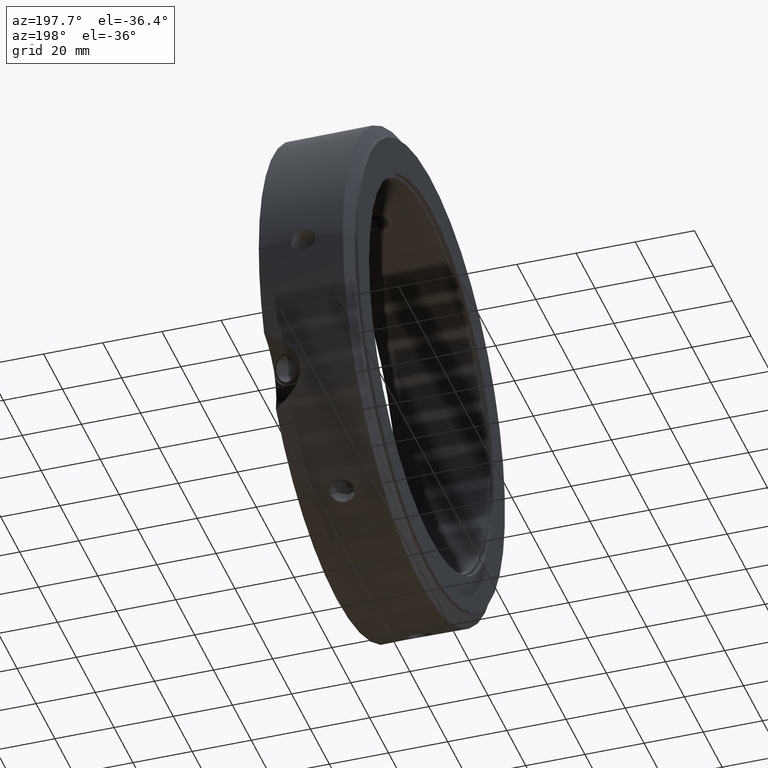
[diagram: clean part render]
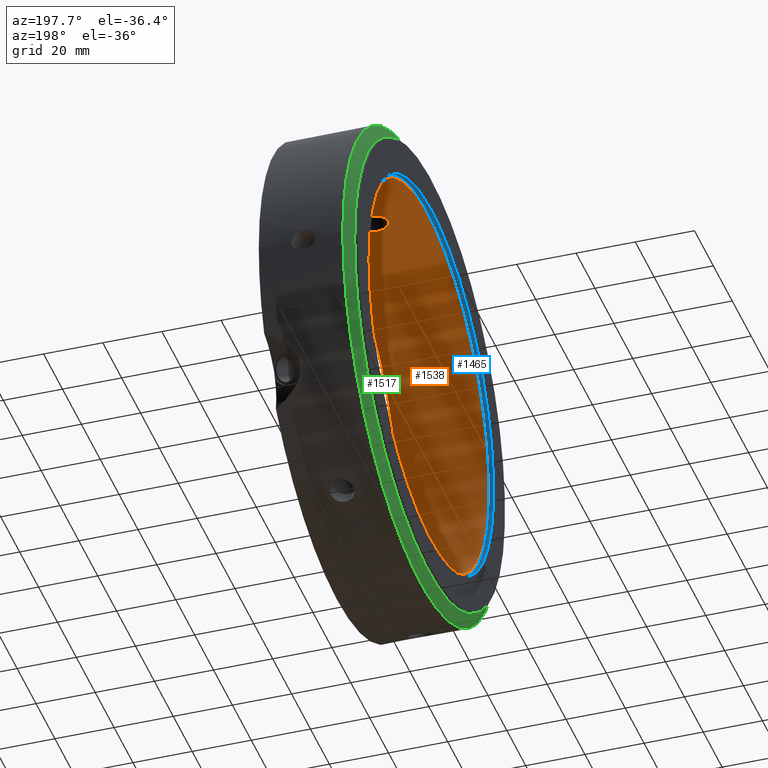
[diagram: same view with three faces highlighted in distinct colors, each labeled with its STEP entity id]
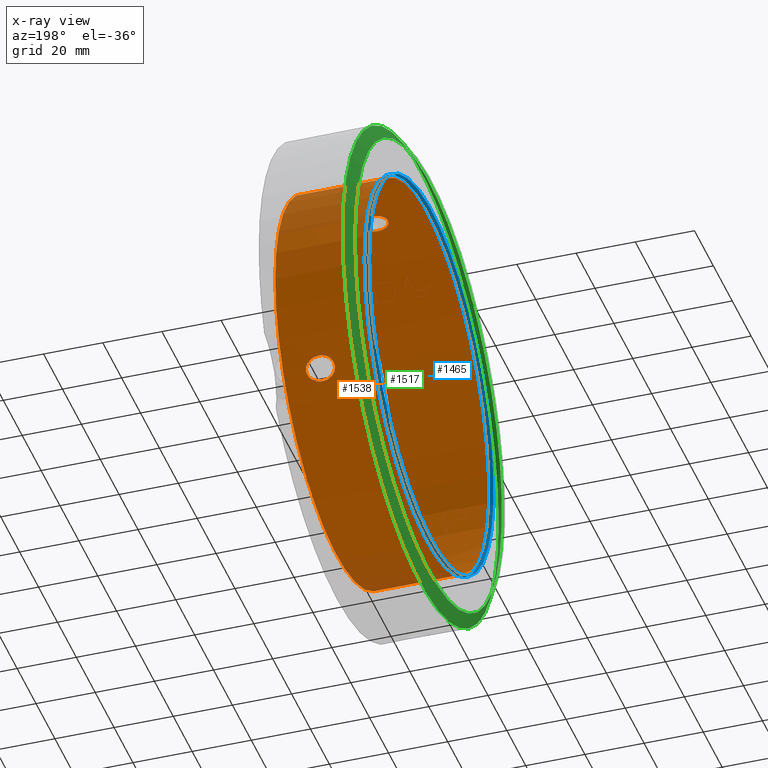
[diagram: x-ray of the same camera — body ghosted, the three highlighted faces saturated]
A machine part, auxiliary view with three faces highlighted in distinct colors.
The next image is the same camera in x-ray (body ghosted, the three faces saturated) — at least one of them is partly hidden behind the body in this view.
Their STEP definitions:

[orange] entity #1538 — the highlighted cylindrical surface (bore or boss wall) has radius 65 mm, axis along (1, 0, 0).
#834=CARTESIAN_POINT('',(19.449791525899506,58.268687288849222,-28.805556436810956));
#835=VERTEX_POINT('',#834);
#836=CARTESIAN_POINT('',(19.449791525899506,58.268687288849222,-28.805556436810956));
#837=CARTESIAN_POINT('',(20.069987058709103,58.268687288849222,-28.805556436810956));
#838=CARTESIAN_POINT('',(20.736374514679333,58.220625987306931,-28.903463131163566));
#839=CARTESIAN_POINT('',(21.979126455155811,58.017443102143289,-29.309175482424386));
#840=CARTESIAN_POINT('',(22.555508099497487,57.86205872336734,-29.616796903578148));
#841=CARTESIAN_POINT('',(23.404937812378947,57.508713071575698,-30.296383630198804));
#842=CARTESIAN_POINT('',(23.759122230442244,57.299869948817737,-30.691582888125023));
#843=CARTESIAN_POINT('',(24.238995100665754,56.822537691922747,-31.566557738468216));
#844=CARTESIAN_POINT('',(24.363653352058002,56.553441166495404,-32.046566556772632));
#845=CARTESIAN_POINT('',(24.363653352058002,56.029861325481576,-32.953433443227418));
#846=CARTESIAN_POINT('',(24.238995100665758,55.748709757503072,-33.42648227946983));
#847=CARTESIAN_POINT('',(23.759122230442252,55.22962543788087,-34.277351565158256));
#848=CARTESIAN_POINT('',(23.404937812378947,54.991794402338982,-34.655814643835427));
#849=CARTESIAN_POINT('',(22.555508099497491,54.579927858906601,-35.301614317914094));
#850=CARTESIAN_POINT('',(21.979126455155814,54.391212082827167,-35.589991847862208));
#851=CARTESIAN_POINT('',(20.736374514679341,54.141446322587996,-35.968809563658553));
#852=CARTESIAN_POINT('',(20.069987058709117,54.080687288849219,-36.059385218909419));
#853=CARTESIAN_POINT('',(18.863857942222779,54.080687288849219,-36.059385218909419));
#854=CARTESIAN_POINT('',(18.232563318278345,54.135148848709832,-35.97818335743932));
#855=CARTESIAN_POINT('',(17.05436508929462,54.366278161371341,-35.627963981850122));
#856=CARTESIAN_POINT('',(16.507621323634268,54.542953425429381,-35.358413918389047));
#857=CARTESIAN_POINT('',(15.665169456207622,54.945746990040945,-34.728855967749162));
#858=CARTESIAN_POINT('',(15.30279860191299,55.192112236806494,-34.337979828775559));
#859=CARTESIAN_POINT('',(14.816015520101955,55.730159706961402,-33.457665952003026));
#860=CARTESIAN_POINT('',(14.691881642593387,56.021521461332867,-32.967878511661219));
#861=CARTESIAN_POINT('',(14.691881642593387,56.552417962650203,-32.048338797819042));
#862=CARTESIAN_POINT('',(14.807657033176637,56.822302951689878,-31.567045290725417));
#863=CARTESIAN_POINT('',(15.264621480098503,57.303514916827439,-30.684843803839513));
#864=CARTESIAN_POINT('',(15.605512266562972,57.515261652401399,-30.284010367374549));
#865=CARTESIAN_POINT('',(16.42883428023265,57.869486479730917,-29.602241052614104));
#866=CARTESIAN_POINT('',(16.98645143067052,58.023470625607118,-29.297208731814187));
#867=CARTESIAN_POINT('',(18.194714033460595,58.222834790453305,-28.89898080939204));
#868=CARTESIAN_POINT('',(18.84520606450592,58.268687288849222,-28.805556436810956));
#869=CARTESIAN_POINT('',(19.44979152589951,58.268687288849222,-28.805556436810956));
#870=B_SPLINE_CURVE_WITH_KNOTS('',3,(#836,#837,#838,#839,#840,#841,#842,#843,#844,#845,#846,#847,#848,#849,#850,#851,#852,#853,#854,#855,#856,#857,#858,#859,#860,#861,#862,#863,#864,#865,#866,#867,#868,#869),.UNSPECIFIED.,.T.,.U.,(4,2,2,2,2,2,2,2,2,2,2,2,2,2,2,2,4),(0.0,0.18605865984288,0.37211731968576,0.529191271989907,0.686265224294055,0.843339176598202,1.00041312890235,1.186471788745229,1.372530448588109,1.548310523691131,1.724090598794154,1.886168469587528,2.048246340380903,2.204706370377928,2.361166400374954,2.54254203879303,2.723917677211107),.UNSPECIFIED.);
#871=EDGE_CURVE('',#835,#835,#870,.T.);
#1020=CARTESIAN_POINT('',(19.44979152589951,-54.080687288849241,-36.05938521890937));
#1021=VERTEX_POINT('',#1020);
#1022=CARTESIAN_POINT('',(19.44979152589951,-54.080687288849241,-36.05938521890937));
#1023=CARTESIAN_POINT('',(20.069987058709113,-54.080687288849241,-36.05938521890937));
#1024=CARTESIAN_POINT('',(20.73637451467933,-54.141446322588038,-35.968809563658517));
#1025=CARTESIAN_POINT('',(21.979126455155811,-54.391212082827209,-35.589991847862173));
#1026=CARTESIAN_POINT('',(22.555508099497494,-54.579927858906636,-35.301614317914051));
#1027=CARTESIAN_POINT('',(23.404937812378957,-54.991794402339025,-34.655814643835384));
#1028=CARTESIAN_POINT('',(23.759122230442252,-55.229625437880898,-34.277351565158206));
#1029=CARTESIAN_POINT('',(24.238995100665758,-55.748709757503093,-33.426482279469781));
#1030=CARTESIAN_POINT('',(24.363653352058012,-56.029861325481619,-32.953433443227375));
#1031=CARTESIAN_POINT('',(24.363653352058012,-56.553441166495446,-32.046566556772589));
#1032=CARTESIAN_POINT('',(24.238995100665761,-56.822537691922776,-31.566557738468163));
#1033=CARTESIAN_POINT('',(23.759122230442252,-57.299869948817758,-30.691582888124969));
#1034=CARTESIAN_POINT('',(23.404937812378957,-57.508713071575741,-30.296383630198747));
#1035=CARTESIAN_POINT('',(22.555508099497494,-57.862058723367376,-29.616796903578091));
#1036=CARTESIAN_POINT('',(21.979126455155811,-58.017443102143325,-29.309175482424344));
#1037=CARTESIAN_POINT('',(20.736374514679333,-58.220625987306967,-28.903463131163527));
#1038=CARTESIAN_POINT('',(20.069987058709117,-58.26868728884925,-28.805556436810914));
#1039=CARTESIAN_POINT('',(18.845206064505927,-58.26868728884925,-28.805556436810914));
#1040=CARTESIAN_POINT('',(18.19471403346061,-58.222834790453334,-28.898980809391986));
#1041=CARTESIAN_POINT('',(16.986451430670531,-58.023470625607146,-29.297208731814138));
#1042=CARTESIAN_POINT('',(16.42883428023265,-57.869486479730945,-29.602241052614051));
#1043=CARTESIAN_POINT('',(15.605512266562974,-57.515261652401435,-30.284010367374506));
#1044=CARTESIAN_POINT('',(15.264621480098501,-57.30351491682746,-30.684843803839463));
#1045=CARTESIAN_POINT('',(14.807657033176636,-56.822302951689892,-31.567045290725364));
#1046=CARTESIAN_POINT('',(14.691881642593394,-56.552417962650239,-32.048338797818992));
#1047=CARTESIAN_POINT('',(14.691881642593394,-56.030884529326812,-32.951661202180986));
#1048=CARTESIAN_POINT('',(14.807657033176639,-55.749014620027069,-33.426035212336231));
#1049=CARTESIAN_POINT('',(15.264621480098505,-55.225611703696259,-34.283877742193354));
#1050=CARTESIAN_POINT('',(15.605512266562979,-54.98435313281837,-34.667672512601307));
#1051=CARTESIAN_POINT('',(16.428834280232657,-54.571036000379863,-35.315324869100053));
#1052=CARTESIAN_POINT('',(16.986451430670531,-54.383862334529908,-35.601195211608847));
#1053=CARTESIAN_POINT('',(18.194714033460603,-54.138668919639123,-35.972963604180983));
#1054=CARTESIAN_POINT('',(18.84520606450592,-54.080687288849248,-36.05938521890937));
#1055=CARTESIAN_POINT('',(19.44979152589951,-54.080687288849248,-36.05938521890937));
#1056=B_SPLINE_CURVE_WITH_KNOTS('',3,(#1022,#1023,#1024,#1025,#1026,#1027,#1028,#1029,#1030,#1031,#1032,#1033,#1034,#1035,#1036,#1037,#1038,#1039,#1040,#1041,#1042,#1043,#1044,#1045,#1046,#1047,#1048,#1049,#1050,#1051,#1052,#1053,#1054,#1055),.UNSPECIFIED.,.T.,.U.,(4,2,2,2,2,2,2,2,2,2,2,2,2,2,2,2,4),(0.0,0.18605865984288,0.37211731968576,0.529191271989908,0.686265224294056,0.843339176598204,1.000413128902352,1.186471788745231,1.372530448588111,1.553906087006188,1.735281725424266,1.89174175542129,2.048201785418315,2.20466181541534,2.361121845412365,2.542497483830442,2.723873122248519),.UNSPECIFIED.);
#1057=EDGE_CURVE('',#1021,#1021,#1056,.T.);
#1212=CARTESIAN_POINT('',(19.449791525899517,-4.188,64.864941655720301));
#1213=VERTEX_POINT('',#1212);
#1214=CARTESIAN_POINT('',(19.449791525899517,-4.188,64.864941655720301));
#1215=CARTESIAN_POINT('',(20.069987058709113,-4.188,64.864941655720301));
#1216=CARTESIAN_POINT('',(20.736374514679344,-4.079179664718942,64.872272694822058));
#1217=CARTESIAN_POINT('',(21.979126455155821,-3.626231019316133,64.899167330286531));
#1218=CARTESIAN_POINT('',(22.555508099497494,-3.282130864460732,64.918411221492178));
#1219=CARTESIAN_POINT('',(23.404937812378957,-2.516918669236713,64.952198274034174));
#1220=CARTESIAN_POINT('',(23.759122230442252,-2.070244510936864,64.968934453283197));
#1221=CARTESIAN_POINT('',(24.238995100665761,-1.073827934419675,64.993040017937972));
#1222=CARTESIAN_POINT('',(24.363653352058012,-0.523579841013825,65.0));
#1223=CARTESIAN_POINT('',(24.363653352058012,0.523579841013826,65.0));
#1224=CARTESIAN_POINT('',(24.238995100665761,1.07382793441968,64.993040017937986));
#1225=CARTESIAN_POINT('',(23.759122230442252,2.070244510936868,64.968934453283211));
#1226=CARTESIAN_POINT('',(23.404937812378957,2.516918669236713,64.952198274034174));
#1227=CARTESIAN_POINT('',(22.555508099497494,3.282130864460732,64.918411221492178));
#1228=CARTESIAN_POINT('',(21.979126455155821,3.626231019316133,64.899167330286531));
#1229=CARTESIAN_POINT('',(20.736374514679344,4.079179664718942,64.872272694822058));
#1230=CARTESIAN_POINT('',(20.069987058709117,4.188,64.864941655720315));
#1231=CARTESIAN_POINT('',(18.863857942222779,4.188,64.864941655720315));
#1232=CARTESIAN_POINT('',(18.232563318278348,4.090446345202,64.871505819354283));
#1233=CARTESIAN_POINT('',(17.054365089294635,3.671582812713479,64.896559987883776));
#1234=CARTESIAN_POINT('',(16.507621323634279,3.349807978135457,64.914790223047845));
#1235=CARTESIAN_POINT('',(15.665169456207636,2.60319801742106,64.948840707162404));
#1236=CARTESIAN_POINT('',(15.302798601912997,2.14150672795398,64.966761199984177));
#1237=CARTESIAN_POINT('',(14.816015520101962,1.110108812287548,64.992567039194014));
#1238=CARTESIAN_POINT('',(14.691881642593394,0.540259569311249,65.0));
#1239=CARTESIAN_POINT('',(14.691881642593394,-0.521533433323416,65.0));
#1240=CARTESIAN_POINT('',(14.807657033176643,-1.073288331662836,64.993080503061634));
#1241=CARTESIAN_POINT('',(15.264621480098503,-2.077903213131215,64.968721546032839));
#1242=CARTESIAN_POINT('',(15.605512266562975,-2.530908519583063,64.951682879975849));
#1243=CARTESIAN_POINT('',(16.428834280232657,-3.298450479351081,64.917565921714129));
#1244=CARTESIAN_POINT('',(16.986451430670531,-3.639608291077229,64.898403943423006));
#1245=CARTESIAN_POINT('',(18.194714033460606,-4.084165870814204,64.871944413573004));
#1246=CARTESIAN_POINT('',(18.845206064505927,-4.188,64.864941655720301));
#1247=CARTESIAN_POINT('',(19.449791525899517,-4.188,64.864941655720301));
#1248=B_SPLINE_CURVE_WITH_KNOTS('',3,(#1214,#1215,#1216,#1217,#1218,#1219,#1220,#1221,#1222,#1223,#1224,#1225,#1226,#1227,#1228,#1229,#1230,#1231,#1232,#1233,#1234,#1235,#1236,#1237,#1238,#1239,#1240,#1241,#1242,#1243,#1244,#1245,#1246,#1247),.UNSPECIFIED.,.T.,.U.,(4,2,2,2,2,2,2,2,2,2,2,2,2,2,2,2,4),(0.0,0.18605865984288,0.372117319685759,0.529191271989907,0.686265224294055,0.843339176598202,1.00041312890235,1.186471788745229,1.372530448588109,1.548310523691131,1.724090598794153,1.886168469587528,2.048246340380903,2.204706370377928,2.361166400374953,2.54254203879303,2.723917677211108),.UNSPECIFIED.);
#1249=EDGE_CURVE('',#1213,#1213,#1248,.T.);
#1394=CARTESIAN_POINT('',(31.999999999999986,65.0,0.0));
#1395=VERTEX_POINT('',#1394);
#1396=CARTESIAN_POINT('',(31.999999999999986,0.0,0.0));
#1397=DIRECTION('',(1.0,0.0,0.0));
#1398=DIRECTION('',(0.0,1.0,0.0));
#1399=AXIS2_PLACEMENT_3D('',#1396,#1397,#1398);
#1400=CIRCLE('',#1399,65.0);
#1401=EDGE_CURVE('',#1395,#1395,#1400,.T.);
#1434=CARTESIAN_POINT('',(1.499999999999981,65.0,0.0));
#1435=VERTEX_POINT('',#1434);
#1436=CARTESIAN_POINT('',(1.499999999999981,0.0,0.0));
#1437=DIRECTION('',(1.0,0.0,0.0));
#1438=DIRECTION('',(0.0,1.0,0.0));
#1439=AXIS2_PLACEMENT_3D('',#1436,#1437,#1438);
#1440=CIRCLE('',#1439,65.0);
#1441=EDGE_CURVE('',#1435,#1435,#1440,.T.);
#1518=CARTESIAN_POINT('',(16.749999999999982,0.0,0.0));
#1519=DIRECTION('',(1.0,0.0,0.0));
#1520=DIRECTION('',(0.0,1.0,0.0));
#1521=AXIS2_PLACEMENT_3D('',#1518,#1519,#1520);
#1522=CYLINDRICAL_SURFACE('',#1521,65.0);
#1523=ORIENTED_EDGE('',*,*,#1441,.F.);
#1524=EDGE_LOOP('',(#1523));
#1525=FACE_OUTER_BOUND('',#1524,.T.);
#1526=ORIENTED_EDGE('',*,*,#871,.T.);
#1527=EDGE_LOOP('',(#1526));
#1528=FACE_BOUND('',#1527,.T.);
#1529=ORIENTED_EDGE('',*,*,#1057,.T.);
#1530=EDGE_LOOP('',(#1529));
#1531=FACE_BOUND('',#1530,.T.);
#1532=ORIENTED_EDGE('',*,*,#1249,.T.);
#1533=EDGE_LOOP('',(#1532));
#1534=FACE_BOUND('',#1533,.T.);
#1535=ORIENTED_EDGE('',*,*,#1401,.T.);
#1536=EDGE_LOOP('',(#1535));
#1537=FACE_BOUND('',#1536,.T.);
#1538=ADVANCED_FACE('',(#1525,#1528,#1531,#1534,#1537),#1522,.F.);

[blue] entity #1465 — the highlighted cylindrical surface (bore or boss wall) has radius 66 mm, axis along (1, 0, 0).
#1423=CARTESIAN_POINT('',(1.499999999999981,66.0,0.0));
#1424=VERTEX_POINT('',#1423);
#1425=CARTESIAN_POINT('',(1.499999999999981,0.0,0.0));
#1426=DIRECTION('',(1.0,0.0,0.0));
#1427=DIRECTION('',(0.0,1.0,0.0));
#1428=AXIS2_PLACEMENT_3D('',#1425,#1426,#1427);
#1429=CIRCLE('',#1428,66.0);
#1430=EDGE_CURVE('',#1424,#1424,#1429,.T.);
#1446=CARTESIAN_POINT('',(0.749999999999981,0.0,0.0));
#1447=DIRECTION('',(1.0,0.0,0.0));
#1448=DIRECTION('',(0.0,1.0,0.0));
#1449=AXIS2_PLACEMENT_3D('',#1446,#1447,#1448);
#1450=CYLINDRICAL_SURFACE('',#1449,66.0);
#1451=CARTESIAN_POINT('',(-1.942890E-014,66.0,0.0));
#1452=VERTEX_POINT('',#1451);
#1453=CARTESIAN_POINT('',(-1.942890E-014,0.0,0.0));
#1454=DIRECTION('',(1.0,0.0,0.0));
#1455=DIRECTION('',(0.0,1.0,0.0));
#1456=AXIS2_PLACEMENT_3D('',#1453,#1454,#1455);
#1457=CIRCLE('',#1456,66.0);
#1458=EDGE_CURVE('',#1452,#1452,#1457,.T.);
#1459=ORIENTED_EDGE('',*,*,#1458,.F.);
#1460=EDGE_LOOP('',(#1459));
#1461=FACE_OUTER_BOUND('',#1460,.T.);
#1462=ORIENTED_EDGE('',*,*,#1430,.T.);
#1463=EDGE_LOOP('',(#1462));
#1464=FACE_BOUND('',#1463,.T.);
#1465=ADVANCED_FACE('',(#1461,#1464),#1450,.F.);

[green] entity #1517 — the highlighted conical surface has half-angle 60 deg.
#1117=CARTESIAN_POINT('',(3.598076211353284,82.5,0.0));
#1118=VERTEX_POINT('',#1117);
#1119=CARTESIAN_POINT('',(3.598076211353284,0.0,0.0));
#1120=DIRECTION('',(1.0,0.0,0.0));
#1121=DIRECTION('',(0.0,1.0,0.0));
#1122=AXIS2_PLACEMENT_3D('',#1119,#1120,#1121);
#1123=CIRCLE('',#1122,82.5);
#1124=EDGE_CURVE('',#1118,#1118,#1123,.T.);
#1491=CARTESIAN_POINT('',(0.999999999999978,78.0,0.0));
#1492=VERTEX_POINT('',#1491);
#1493=CARTESIAN_POINT('',(0.999999999999978,0.0,0.0));
#1494=DIRECTION('',(1.0,0.0,0.0));
#1495=DIRECTION('',(0.0,1.0,0.0));
#1496=AXIS2_PLACEMENT_3D('',#1493,#1494,#1495);
#1497=CIRCLE('',#1496,78.0);
#1498=EDGE_CURVE('',#1492,#1492,#1497,.T.);
#1506=CARTESIAN_POINT('',(2.299038105676631,0.0,0.0));
#1507=DIRECTION('',(1.0,0.0,0.0));
#1508=DIRECTION('',(0.0,1.0,0.0));
#1509=AXIS2_PLACEMENT_3D('',#1506,#1507,#1508);
#1510=CONICAL_SURFACE('',#1509,80.25,60.000000000000057);
#1511=ORIENTED_EDGE('',*,*,#1124,.F.);
#1512=EDGE_LOOP('',(#1511));
#1513=FACE_OUTER_BOUND('',#1512,.T.);
#1514=ORIENTED_EDGE('',*,*,#1498,.T.);
#1515=EDGE_LOOP('',(#1514));
#1516=FACE_BOUND('',#1515,.T.);
#1517=ADVANCED_FACE('',(#1513,#1516),#1510,.T.);